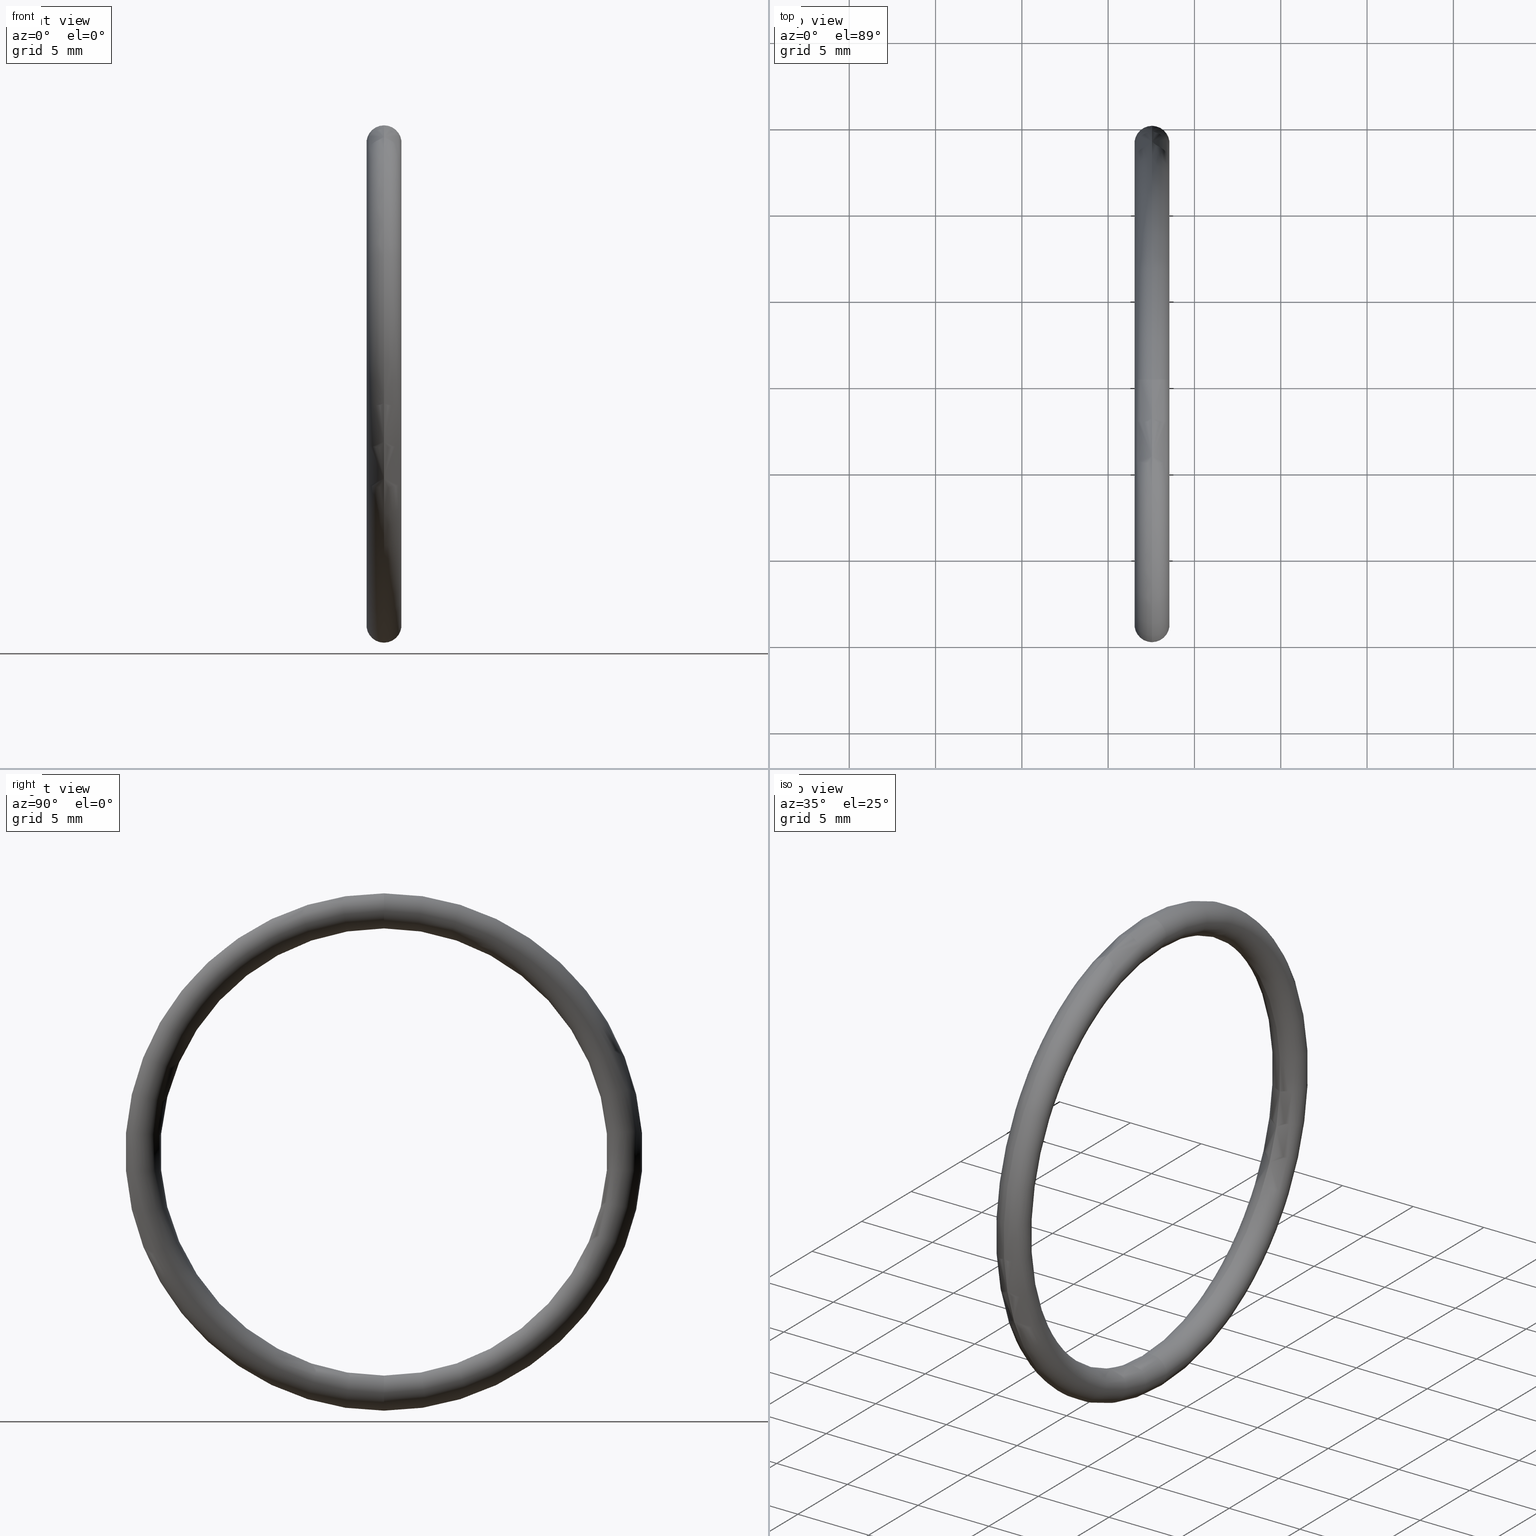
[diagram: canonical four-view strip — front | top / right | iso, engineering-drawing reading convention]
A machine part, canonical four-view strip (front | top / right | iso — engineering-drawing reading convention). The complete STEP part file that produces these views, byte-faithful:
ISO-10303-21;
HEADER;
FILE_DESCRIPTION (( 'STEP AP203' ),
    '1' );
FILE_NAME ('OR-21-SI.STEP',
    '2006-03-03T07:26:11',
    ( 'bay06' ),
    ( '' ),
    'SwSTEP 2.0',
    'SolidWorks 2008',
    '' );
FILE_SCHEMA (( 'CONFIG_CONTROL_DESIGN' ));
ENDSEC;

DATA;
#1 = PRODUCT_DEFINITION_SHAPE ( 'NONE', 'NONE',  #68 ) ;
#2 = PRODUCT_RELATED_PRODUCT_CATEGORY ( 'detail', '', ( #49 ) ) ;
#3 = CC_DESIGN_SECURITY_CLASSIFICATION ( #24, ( #43 ) ) ;
#4 = CC_DESIGN_APPROVAL ( #12, ( #24 ) ) ;
#5 = APPROVAL_DATE_TIME ( #6, #12 ) ;
#6 = DATE_AND_TIME ( #7, #8 ) ;
#7 = CALENDAR_DATE ( 2006, 3, 3 ) ;
#8 = LOCAL_TIME ( 12, 56, 11.00000000000000000, #9 ) ;
#9 = COORDINATED_UNIVERSAL_TIME_OFFSET ( 5, 30, .AHEAD. ) ;
#10 = APPROVAL_PERSON_ORGANIZATION ( #14, #12, #11 ) ;
#11 = APPROVAL_ROLE ( '' ) ;
#12 = APPROVAL ( #13, 'UNSPECIFIED' ) ;
#13 = APPROVAL_STATUS ( 'not_yet_approved' ) ;
#14 = PERSON_AND_ORGANIZATION ( #48, #56 ) ;
#15 = CC_DESIGN_DATE_AND_TIME_ASSIGNMENT ( #17, #16, ( #24 ) ) ;
#16 = DATE_TIME_ROLE ( 'classification_date' ) ;
#17 = DATE_AND_TIME ( #18, #19 ) ;
#18 = CALENDAR_DATE ( 2006, 3, 3 ) ;
#19 = LOCAL_TIME ( 12, 56, 11.00000000000000000, #20 ) ;
#20 = COORDINATED_UNIVERSAL_TIME_OFFSET ( 5, 30, .AHEAD. ) ;
#21 = CC_DESIGN_PERSON_AND_ORGANIZATION_ASSIGNMENT ( #23, #22, ( #24 ) ) ;
#22 = PERSON_AND_ORGANIZATION_ROLE ( 'classification_officer' ) ;
#23 = PERSON_AND_ORGANIZATION ( #48, #56 ) ;
#24 = SECURITY_CLASSIFICATION ( '', '', #25 ) ;
#25 = SECURITY_CLASSIFICATION_LEVEL ( 'unclassified' ) ;
#26 = CC_DESIGN_PERSON_AND_ORGANIZATION_ASSIGNMENT ( #28, #27, ( #43 ) ) ;
#27 = PERSON_AND_ORGANIZATION_ROLE ( 'design_supplier' ) ;
#28 = PERSON_AND_ORGANIZATION ( #48, #56 ) ;
#29 = CC_DESIGN_PERSON_AND_ORGANIZATION_ASSIGNMENT ( #31, #30, ( #43 ) ) ;
#30 = PERSON_AND_ORGANIZATION_ROLE ( 'creator' ) ;
#31 = PERSON_AND_ORGANIZATION ( #48, #56 ) ;
#32 = CC_DESIGN_APPROVAL ( #40, ( #43 ) ) ;
#33 = APPROVAL_DATE_TIME ( #34, #40 ) ;
#34 = DATE_AND_TIME ( #35, #36 ) ;
#35 = CALENDAR_DATE ( 2006, 3, 3 ) ;
#36 = LOCAL_TIME ( 12, 56, 11.00000000000000000, #37 ) ;
#37 = COORDINATED_UNIVERSAL_TIME_OFFSET ( 5, 30, .AHEAD. ) ;
#38 = APPROVAL_PERSON_ORGANIZATION ( #42, #40, #39 ) ;
#39 = APPROVAL_ROLE ( '' ) ;
#40 = APPROVAL ( #41, 'UNSPECIFIED' ) ;
#41 = APPROVAL_STATUS ( 'not_yet_approved' ) ;
#42 = PERSON_AND_ORGANIZATION ( #48, #56 ) ;
#43 = PRODUCT_DEFINITION_FORMATION_WITH_SPECIFIED_SOURCE ( 'ANY', '', #49, .NOT_KNOWN. ) ;
#44 = CC_DESIGN_DATE_AND_TIME_ASSIGNMENT ( #46, #45, ( #68 ) ) ;
#45 = DATE_TIME_ROLE ( 'creation_date' ) ;
#46 = DATE_AND_TIME ( #47, #72 ) ;
#47 = CALENDAR_DATE ( 2006, 3, 3 ) ;
#48 = PERSON ( 'UNSPECIFIED', 'UNSPECIFIED', 'UNSPECIFIED', ('UNSPECIFIED'), ('UNSPECIFIED'), ('UNSPECIFIED') ) ;
#49 = PRODUCT ( 'OR-21-SI', 'OR-21-SI', '', ( #70 ) ) ;
#50 = DESIGN_CONTEXT ( 'detailed design', #52, 'design' ) ;
#51 = APPLICATION_PROTOCOL_DEFINITION ( 'international standard', 'config_control_design', 1994, #52 ) ;
#52 = APPLICATION_CONTEXT ( 'configuration controlled 3d designs of mechanical parts and assemblies' ) ;
#53 = CC_DESIGN_PERSON_AND_ORGANIZATION_ASSIGNMENT ( #55, #54, ( #49 ) ) ;
#54 = PERSON_AND_ORGANIZATION_ROLE ( 'design_owner' ) ;
#55 = PERSON_AND_ORGANIZATION ( #48, #56 ) ;
#56 = ORGANIZATION ( 'UNSPECIFIED', 'UNSPECIFIED', '' ) ;
#57 = APPLICATION_CONTEXT ( 'configuration controlled 3d designs of mechanical parts and assemblies' ) ;
#58 = APPROVAL_DATE_TIME ( #59, #65 ) ;
#59 = DATE_AND_TIME ( #60, #61 ) ;
#60 = CALENDAR_DATE ( 2006, 3, 3 ) ;
#61 = LOCAL_TIME ( 12, 56, 11.00000000000000000, #62 ) ;
#62 = COORDINATED_UNIVERSAL_TIME_OFFSET ( 5, 30, .AHEAD. ) ;
#63 = APPROVAL_PERSON_ORGANIZATION ( #67, #65, #64 ) ;
#64 = APPROVAL_ROLE ( '' ) ;
#65 = APPROVAL ( #66, 'UNSPECIFIED' ) ;
#66 = APPROVAL_STATUS ( 'not_yet_approved' ) ;
#67 = PERSON_AND_ORGANIZATION ( #48, #56 ) ;
#68 = PRODUCT_DEFINITION ( 'UNKNOWN', '', #43, #50 ) ;
#69 = SHAPE_DEFINITION_REPRESENTATION ( #1, #188 ) ;
#70 = MECHANICAL_CONTEXT ( 'NONE', #57, 'mechanical' ) ;
#71 = APPLICATION_PROTOCOL_DEFINITION ( 'international standard', 'config_control_design', 1994, #57 ) ;
#72 = LOCAL_TIME ( 12, 56, 11.00000000000000000, #73 ) ;
#73 = COORDINATED_UNIVERSAL_TIME_OFFSET ( 5, 30, .AHEAD. ) ;
#74 = CC_DESIGN_PERSON_AND_ORGANIZATION_ASSIGNMENT ( #76, #75, ( #68 ) ) ;
#75 = PERSON_AND_ORGANIZATION_ROLE ( 'creator' ) ;
#76 = PERSON_AND_ORGANIZATION ( #48, #56 ) ;
#77 = CC_DESIGN_APPROVAL ( #65, ( #68 ) ) ;
#78 = ORIENTED_EDGE ( 'NONE', *, *, #79, .T. ) ;
#79 = EDGE_CURVE ( 'NONE', #99, #98, #120, .T. ) ;
#80 = EDGE_LOOP ( 'NONE', ( #119, #86, #83, #82 ) ) ;
#81 = CLOSED_SHELL ( 'NONE', ( #93, #90, #111, #103 ) ) ;
#82 = ORIENTED_EDGE ( 'NONE', *, *, #102, .T. ) ;
#83 = ORIENTED_EDGE ( 'NONE', *, *, #117, .T. ) ;
#84 = CARTESIAN_POINT ( 'NONE',  ( 0.1000000000000000700, 0.0000000000000000000, 0.0000000000000000000 ) ) ;
#85 = DIRECTION ( 'NONE',  ( 0.0000000000000000000, -1.224646799147353000E-016, 1.000000000000000000 ) ) ;
#86 = ORIENTED_EDGE ( 'NONE', *, *, #79, .F. ) ;
#87 = DIRECTION ( 'NONE',  ( -1.000000000000000000, -0.0000000000000000000, -0.0000000000000000000 ) ) ;
#88 = DIRECTION ( 'NONE',  ( 0.0000000000000000000, 0.0000000000000000000, 1.000000000000000000 ) ) ;
#89 = EDGE_LOOP ( 'NONE', ( #116, #115, #104, #105 ) ) ;
#90 = ADVANCED_FACE ( 'NONE', ( #173 ), #159, .T. ) ;
#91 = EDGE_LOOP ( 'NONE', ( #110, #101, #100, #78 ) ) ;
#92 = ORIENTED_EDGE ( 'NONE', *, *, #117, .F. ) ;
#93 = ADVANCED_FACE ( 'NONE', ( #169 ), #132, .T. ) ;
#94 = EDGE_LOOP ( 'NONE', ( #108, #107, #112, #92 ) ) ;
#95 = EDGE_CURVE ( 'NONE', #97, #106, #129, .T. ) ;
#96 = EDGE_CURVE ( 'NONE', #98, #97, #172, .T. ) ;
#97 = VERTEX_POINT ( 'NONE', #148 ) ;
#98 = VERTEX_POINT ( 'NONE', #147 ) ;
#99 = VERTEX_POINT ( 'NONE', #146 ) ;
#100 = ORIENTED_EDGE ( 'NONE', *, *, #113, .T. ) ;
#101 = ORIENTED_EDGE ( 'NONE', *, *, #102, .F. ) ;
#102 = EDGE_CURVE ( 'NONE', #106, #97, #157, .T. ) ;
#103 = ADVANCED_FACE ( 'NONE', ( #158 ), #166, .T. ) ;
#104 = ORIENTED_EDGE ( 'NONE', *, *, #109, .T. ) ;
#105 = ORIENTED_EDGE ( 'NONE', *, *, #113, .F. ) ;
#106 = VERTEX_POINT ( 'NONE', #162 ) ;
#107 = ORIENTED_EDGE ( 'NONE', *, *, #96, .T. ) ;
#108 = ORIENTED_EDGE ( 'NONE', *, *, #109, .F. ) ;
#109 = EDGE_CURVE ( 'NONE', #98, #99, #161, .T. ) ;
#110 = ORIENTED_EDGE ( 'NONE', *, *, #114, .F. ) ;
#111 = ADVANCED_FACE ( 'NONE', ( #141 ), #140, .T. ) ;
#112 = ORIENTED_EDGE ( 'NONE', *, *, #95, .T. ) ;
#113 = EDGE_CURVE ( 'NONE', #106, #99, #139, .T. ) ;
#114 = EDGE_CURVE ( 'NONE', #97, #98, #174, .T. ) ;
#115 = ORIENTED_EDGE ( 'NONE', *, *, #114, .T. ) ;
#116 = ORIENTED_EDGE ( 'NONE', *, *, #95, .F. ) ;
#117 = EDGE_CURVE ( 'NONE', #99, #106, #183, .T. ) ;
#118 = MANIFOLD_SOLID_BREP ( 'NONE', #81 ) ;
#119 = ORIENTED_EDGE ( 'NONE', *, *, #96, .F. ) ;
#120 = CIRCLE ( 'NONE', #123, 0.03999999999999998000 ) ;
#121 = DIRECTION ( 'NONE',  ( -0.0000000000000000000, 1.000000000000000000, 1.224646799147353200E-016 ) ) ;
#122 = CARTESIAN_POINT ( 'NONE',  ( 0.1000000000000000700, 6.735557395310442500E-017, -0.5500000000000000400 ) ) ;
#123 = AXIS2_PLACEMENT_3D ( 'NONE', #122, #121, #85 ) ;
#124 = AXIS2_PLACEMENT_3D ( 'NONE', #130, #168, #160 ) ;
#125 = DIRECTION ( 'NONE',  ( 0.0000000000000000000, 0.0000000000000000000, -1.000000000000000000 ) ) ;
#126 = DIRECTION ( 'NONE',  ( 0.0000000000000000000, -1.000000000000000000, 0.0000000000000000000 ) ) ;
#127 = CARTESIAN_POINT ( 'NONE',  ( 0.1000000000000000700, 0.0000000000000000000, 0.5500000000000000400 ) ) ;
#128 = AXIS2_PLACEMENT_3D ( 'NONE', #127, #126, #125 ) ;
#129 = CIRCLE ( 'NONE', #128, 0.03999999999999998000 ) ;
#130 = CARTESIAN_POINT ( 'NONE',  ( 0.1000000000000000700, 0.0000000000000000000, 0.0000000000000000000 ) ) ;
#131 = DIRECTION ( 'NONE',  ( 0.0000000000000000000, 0.0000000000000000000, 1.000000000000000000 ) ) ;
#132 = TOROIDAL_SURFACE ( 'NONE', #152, 0.5500000000000000400, 0.04000000000000000100 ) ;
#133 = DIRECTION ( 'NONE',  ( -1.000000000000000000, -0.0000000000000000000, -0.0000000000000000000 ) ) ;
#134 = AXIS2_PLACEMENT_3D ( 'NONE', #84, #87, #88 ) ;
#135 = DIRECTION ( 'NONE',  ( 0.0000000000000000000, 0.0000000000000000000, 1.000000000000000000 ) ) ;
#136 = DIRECTION ( 'NONE',  ( -1.000000000000000000, -0.0000000000000000000, -0.0000000000000000000 ) ) ;
#137 = CARTESIAN_POINT ( 'NONE',  ( 0.1000000000000000700, 0.0000000000000000000, 0.0000000000000000000 ) ) ;
#138 = AXIS2_PLACEMENT_3D ( 'NONE', #137, #136, #135 ) ;
#139 = CIRCLE ( 'NONE', #134, 0.5100000000000000100 ) ;
#140 = TOROIDAL_SURFACE ( 'NONE', #138, 0.5500000000000000400, 0.04000000000000000100 ) ;
#141 = FACE_OUTER_BOUND ( 'NONE', #91, .T. ) ;
#142 = DIRECTION ( 'NONE',  ( 0.0000000000000000000, -1.224646799147353000E-016, 1.000000000000000000 ) ) ;
#143 = DIRECTION ( 'NONE',  ( -0.0000000000000000000, 1.000000000000000000, 1.224646799147353200E-016 ) ) ;
#144 = CARTESIAN_POINT ( 'NONE',  ( 0.1000000000000000700, 6.735557395310442500E-017, -0.5500000000000000400 ) ) ;
#145 = AXIS2_PLACEMENT_3D ( 'NONE', #144, #143, #142 ) ;
#146 = CARTESIAN_POINT ( 'NONE',  ( 0.1000000000000000700, 6.245698675651502300E-017, -0.5100000000000000100 ) ) ;
#147 = CARTESIAN_POINT ( 'NONE',  ( 0.1000000000000000700, 7.225416114969383900E-017, -0.5899999999999999700 ) ) ;
#148 = CARTESIAN_POINT ( 'NONE',  ( 0.1000000000000000700, 0.0000000000000000000, 0.5899999999999999700 ) ) ;
#149 = DIRECTION ( 'NONE',  ( 0.0000000000000000000, 0.0000000000000000000, 1.000000000000000000 ) ) ;
#150 = DIRECTION ( 'NONE',  ( -1.000000000000000000, -0.0000000000000000000, -0.0000000000000000000 ) ) ;
#151 = CARTESIAN_POINT ( 'NONE',  ( 0.1000000000000000700, 0.0000000000000000000, 0.0000000000000000000 ) ) ;
#152 = AXIS2_PLACEMENT_3D ( 'NONE', #151, #133, #131 ) ;
#153 = DIRECTION ( 'NONE',  ( 0.0000000000000000000, 0.0000000000000000000, -1.000000000000000000 ) ) ;
#154 = DIRECTION ( 'NONE',  ( 0.0000000000000000000, -1.000000000000000000, 0.0000000000000000000 ) ) ;
#155 = CARTESIAN_POINT ( 'NONE',  ( 0.1000000000000000700, 0.0000000000000000000, 0.5500000000000000400 ) ) ;
#156 = AXIS2_PLACEMENT_3D ( 'NONE', #155, #154, #153 ) ;
#157 = CIRCLE ( 'NONE', #156, 0.03999999999999998000 ) ;
#158 = FACE_OUTER_BOUND ( 'NONE', #80, .T. ) ;
#159 = TOROIDAL_SURFACE ( 'NONE', #124, 0.5500000000000000400, 0.04000000000000000100 ) ;
#160 = DIRECTION ( 'NONE',  ( 0.0000000000000000000, 0.0000000000000000000, 1.000000000000000000 ) ) ;
#161 = CIRCLE ( 'NONE', #145, 0.03999999999999998000 ) ;
#162 = CARTESIAN_POINT ( 'NONE',  ( 0.1000000000000000700, 0.0000000000000000000, 0.5100000000000000100 ) ) ;
#163 = DIRECTION ( 'NONE',  ( 0.0000000000000000000, 0.0000000000000000000, 1.000000000000000000 ) ) ;
#164 = DIRECTION ( 'NONE',  ( -1.000000000000000000, -0.0000000000000000000, -0.0000000000000000000 ) ) ;
#165 = AXIS2_PLACEMENT_3D ( 'NONE', #167, #164, #163 ) ;
#166 = TOROIDAL_SURFACE ( 'NONE', #165, 0.5500000000000000400, 0.04000000000000000100 ) ;
#167 = CARTESIAN_POINT ( 'NONE',  ( 0.1000000000000000700, 0.0000000000000000000, 0.0000000000000000000 ) ) ;
#168 = DIRECTION ( 'NONE',  ( -1.000000000000000000, -0.0000000000000000000, -0.0000000000000000000 ) ) ;
#169 = FACE_OUTER_BOUND ( 'NONE', #94, .T. ) ;
#170 = CARTESIAN_POINT ( 'NONE',  ( 0.1000000000000000700, 0.0000000000000000000, 0.0000000000000000000 ) ) ;
#171 = AXIS2_PLACEMENT_3D ( 'NONE', #170, #150, #149 ) ;
#172 = CIRCLE ( 'NONE', #171, 0.5899999999999999700 ) ;
#173 = FACE_OUTER_BOUND ( 'NONE', #89, .T. ) ;
#174 = CIRCLE ( 'NONE', #179, 0.5899999999999999700 ) ;
#175 = CARTESIAN_POINT ( 'NONE',  ( 0.1000000000000000700, 0.0000000000000000000, 0.0000000000000000000 ) ) ;
#176 = DIRECTION ( 'NONE',  ( 0.0000000000000000000, 0.0000000000000000000, 1.000000000000000000 ) ) ;
#177 = DIRECTION ( 'NONE',  ( -1.000000000000000000, -0.0000000000000000000, -0.0000000000000000000 ) ) ;
#178 = CARTESIAN_POINT ( 'NONE',  ( 0.1000000000000000700, 0.0000000000000000000, 0.0000000000000000000 ) ) ;
#179 = AXIS2_PLACEMENT_3D ( 'NONE', #178, #177, #176 ) ;
#180 = DIRECTION ( 'NONE',  ( 0.0000000000000000000, 0.0000000000000000000, 1.000000000000000000 ) ) ;
#181 = DIRECTION ( 'NONE',  ( -1.000000000000000000, -0.0000000000000000000, -0.0000000000000000000 ) ) ;
#182 = AXIS2_PLACEMENT_3D ( 'NONE', #175, #181, #180 ) ;
#183 = CIRCLE ( 'NONE', #182, 0.5100000000000000100 ) ;
#184 = CARTESIAN_POINT ( 'NONE',  ( 0.0000000000000000000, 0.0000000000000000000, 0.0000000000000000000 ) ) ;
#185 = DIRECTION ( 'NONE',  ( 0.0000000000000000000, 0.0000000000000000000, 1.000000000000000000 ) ) ;
#186 = AXIS2_PLACEMENT_3D ( 'NONE', #184, #185, #187 ) ;
#187 = DIRECTION ( 'NONE',  ( 1.000000000000000000, 0.0000000000000000000, 0.0000000000000000000 ) ) ;
#188 = ADVANCED_BREP_SHAPE_REPRESENTATION ( 'OR-21-SI', ( #118, #186 ), #189 ) ;
#189 =( GEOMETRIC_REPRESENTATION_CONTEXT ( 3 ) GLOBAL_UNCERTAINTY_ASSIGNED_CONTEXT ( ( #190 ) ) GLOBAL_UNIT_ASSIGNED_CONTEXT ( ( #193, #192, #191 ) ) REPRESENTATION_CONTEXT ( 'NONE', 'WORKASPACE' ) );
#190 = UNCERTAINTY_MEASURE_WITH_UNIT (LENGTH_MEASURE( 1.000000000000000100E-005 ), #193, 'distance_accuracy_value', 'NONE');
#191 =( NAMED_UNIT ( * ) SI_UNIT ( $, .STERADIAN. ) SOLID_ANGLE_UNIT ( ) );
#192 =( NAMED_UNIT ( * ) PLANE_ANGLE_UNIT ( ) SI_UNIT ( $, .RADIAN. ) );
#193 =( CONVERSION_BASED_UNIT ( 'INCH', #194 ) LENGTH_UNIT ( ) NAMED_UNIT ( #195 ) );
#194 = LENGTH_MEASURE_WITH_UNIT ( LENGTH_MEASURE( 0.02539999999999999900 ), #196 );
#195 = DIMENSIONAL_EXPONENTS ( 1.000000000000000000, 0.0000000000000000000, 0.0000000000000000000, 0.0000000000000000000, 0.0000000000000000000, 0.0000000000000000000, 0.0000000000000000000 ) ;
#196 =( LENGTH_UNIT ( ) NAMED_UNIT ( * ) SI_UNIT ( $, .METRE. ) );
ENDSEC;
END-ISO-10303-21;
